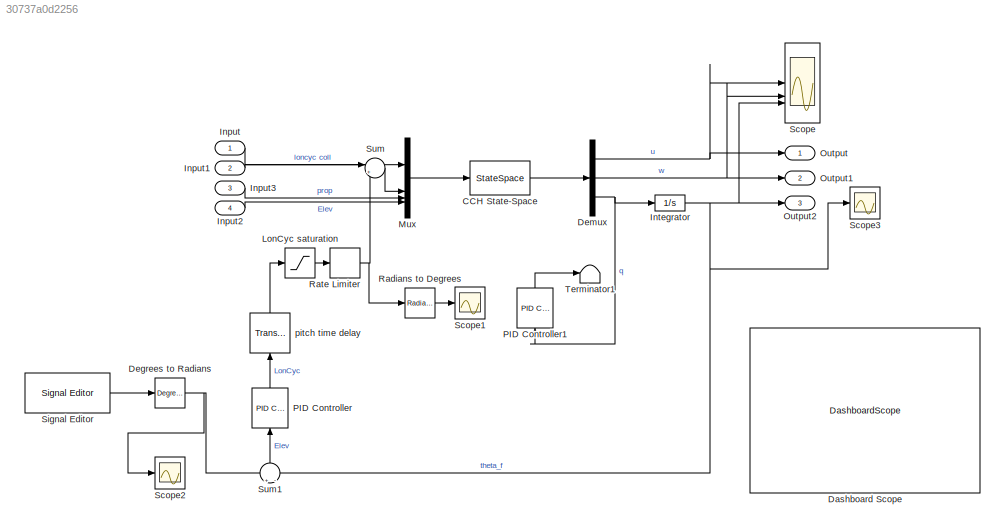
MODEL slx_30737a0d2256
KIND model
CONFIG AbsTol = auto
CONFIG EnableMultiTasking = off
CONFIG FixedStep = auto
CONFIG MaxStep = auto
CONFIG MinStep = auto
CONFIG RelTol = 1e-3
CONFIG SampleTimeConstraint = Unconstrained
CONFIG SolverName = VariableStepAuto
CONFIG StartTime = 0.0
CONFIG StopTime = 10.0
BLOCK [StateSpace] CCH State-Space
  A = AA
  B = BB
  C = CC
  D = DD
  InitialCondition = 0
BLOCK [DashboardScope] Dashboard Scope
BLOCK [Reference] Degrees to Radians  REF=simulink_extras/Transformations/Degrees to
Radians
  SourceBlock = simulink_extras/Transformations/Degrees to\nRadians
  SourceType = DegreesToRadians
BLOCK [Demux] Demux
  Outputs = 3
BLOCK [Inport] Input
BLOCK [Inport] Input1
  Port = 2
BLOCK [Inport] Input2
  Port = 4
BLOCK [Inport] Input3
  Port = 3
BLOCK [Integrator] Integrator
BLOCK [Saturate] LonCyc saturation
  LowerLimit = deg2rad(-12)
  UpperLimit = deg2rad(6)
BLOCK [Mux] Mux
  DisplayOption = bar
BLOCK [Outport] Output
BLOCK [Outport] Output1
  Port = 2
BLOCK [Outport] Output2
  Port = 3
BLOCK [Reference] PID Controller  REF=slpidlib/PID Controller
  LibrarySourceBlock = simulink/Continuous/PID Controller
  NameLocation = right
  SourceBlock = slpidlib/PID Controller
  SourceType = PID 1dof
BLOCK [Reference] PID Controller1  REF=slpidlib/PID Controller
  LibrarySourceBlock = simulink/Continuous/PID Controller
  NameLocation = right
  SourceBlock = slpidlib/PID Controller
  SourceType = PID 1dof
BLOCK [Reference] Radians to Degrees  REF=simulink_extras/Transformations/Radians
to Degrees
  SourceBlock = simulink_extras/Transformations/Radians\nto Degrees
  SourceType = RadiansToDegrees
BLOCK [RateLimiter] Rate Limiter
  FallingSlewLimit = deg2rad(-28.8)
  RisingSlewLimit = deg2rad(28.8)
  SampleTimeMode = inherited
BLOCK [Scope] Scope
  Floating = off
  NumInputPorts = 3
  ScopeSpecificationString = Simulink.scopes.TimeScopeBlockCfg('CurrentConfiguration', extmgr.ConfigurationSet(extmgr.Configuration('Core','General UI',true),extmgr.Configuration('Core','Source UI',true),extmgr.Configuration('Sources','WiredSimulink',true),extmgr.Configuration('Visuals','Time Domain',true,'SerializedDisplays',{struct('MinYLimReal','-0.18793','MaxYLimReal','1.40819','YLabelReal','','MinYLimMag','0.00000','MaxY...<+1362ch>
BLOCK [Scope] Scope1
  Floating = off
  NumInputPorts = 1
  ScopeSpecificationString = Simulink.scopes.TimeScopeBlockCfg('CurrentConfiguration', extmgr.ConfigurationSet(extmgr.Configuration('Core','General UI',true),extmgr.Configuration('Core','Source UI',true),extmgr.Configuration('Sources','WiredSimulink',true,'DataLoggingVariableName','ScopeData1'),extmgr.Configuration('Visuals','Time Domain',true,'SerializedDisplays',{struct('MinYLimReal','-0.67586','MaxYLimReal','0.12758','YLab...<+1406ch>
BLOCK [Scope] Scope2
  Floating = off
  NumInputPorts = 1
  ScopeSpecificationString = Simulink.scopes.TimeScopeBlockCfg('CurrentConfiguration', extmgr.ConfigurationSet(extmgr.Configuration('Core','General UI',true),extmgr.Configuration('Core','Source UI',true),extmgr.Configuration('Sources','WiredSimulink',true,'DataLoggingVariableName','ScopeData2'),extmgr.Configuration('Visuals','Time Domain',true,'SerializedDisplays',{struct('MinYLimReal','-0.00436','MaxYLimReal','0.03927','YLab...<+1406ch>
BLOCK [Scope] Scope3
  Floating = off
  NumInputPorts = 1
  ScopeSpecificationString = Simulink.scopes.TimeScopeBlockCfg('CurrentConfiguration', extmgr.ConfigurationSet(extmgr.Configuration('Core','General UI',true),extmgr.Configuration('Core','Source UI',true),extmgr.Configuration('Sources','WiredSimulink',true,'DataLoggingVariableName','ScopeData3'),extmgr.Configuration('Visuals','Time Domain',true,'SerializedDisplays',{struct('MinYLimReal','-0.00498','MaxYLimReal','0.0448','YLabe...<+1418ch>
BLOCK [Reference] Signal Editor  REF=SignalEditorBlockLib/Signal Editor
  LibrarySourceBlock = simulink/Sources/Signal Editor
  SourceBlock = SignalEditorBlockLib/Signal Editor
  SourceType = SignalEditor
  UserDataPersistent = on
BLOCK [Sum] Sum
  Inputs = |++
BLOCK [Sum] Sum1
  Inputs = +|-
  NameLocation = right
BLOCK [Terminator] Terminator1
BLOCK [TransportDelay] pitch time delay
  DelayTime = 0.12
  NameLocation = right
LINE CCH State-Space:1 -> Demux:1
NET Degrees to Radians:1 -> Scope2:1, Sum1:1
NET Demux:1 -> Output:1, Scope:1
NET Demux:2 -> Output1:1, Scope:2
NET Demux:3 -> Integrator:1, PID Controller1:1
LINE Input1:1 -> Sum:1
LINE Input2:1 -> Mux:4
LINE Input3:1 -> Mux:3
LINE Input:1 -> Mux:1
NET Integrator:1 -> Output2:1, Scope3:1, Scope:3, Sum1:2
LINE LonCyc saturation:1 -> Rate Limiter:1
LINE Mux:1 -> CCH State-Space:1
LINE PID Controller1:1 -> Terminator1:1
LINE PID Controller:1 -> pitch time delay:1
LINE Radians to Degrees:1 -> Scope1:1
NET Rate Limiter:1 -> Radians to Degrees:1, Sum:2
LINE Signal Editor:1 -> Degrees to Radians:1
LINE Sum1:1 -> PID Controller:1
LINE Sum:1 -> Mux:2
LINE pitch time delay:1 -> LonCyc saturation:1
note: NET lines group one-source signal fan-out (src -> all destinations, sorted); 1:1 wires keep LINE
